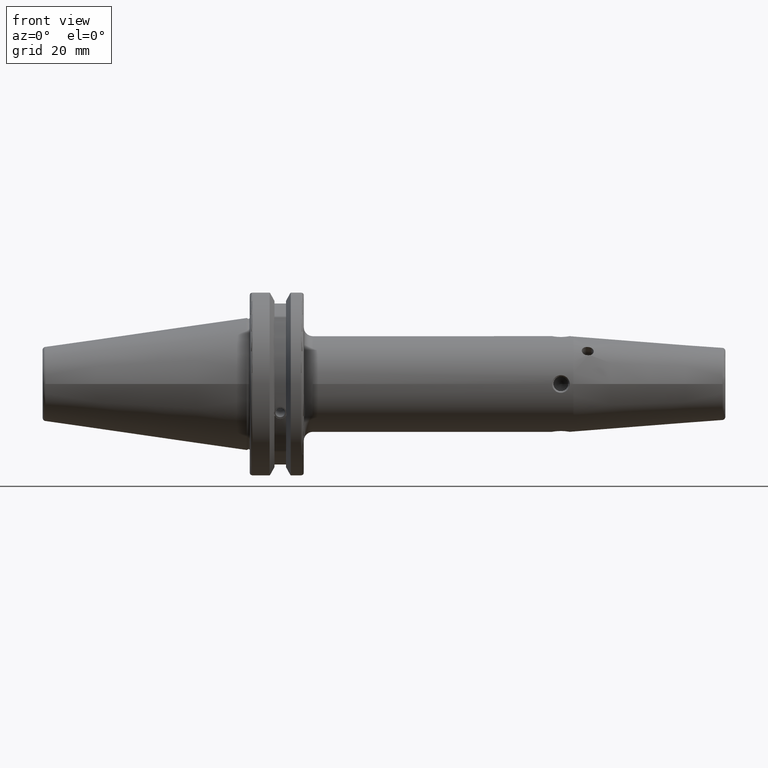
[diagram: clean part render]
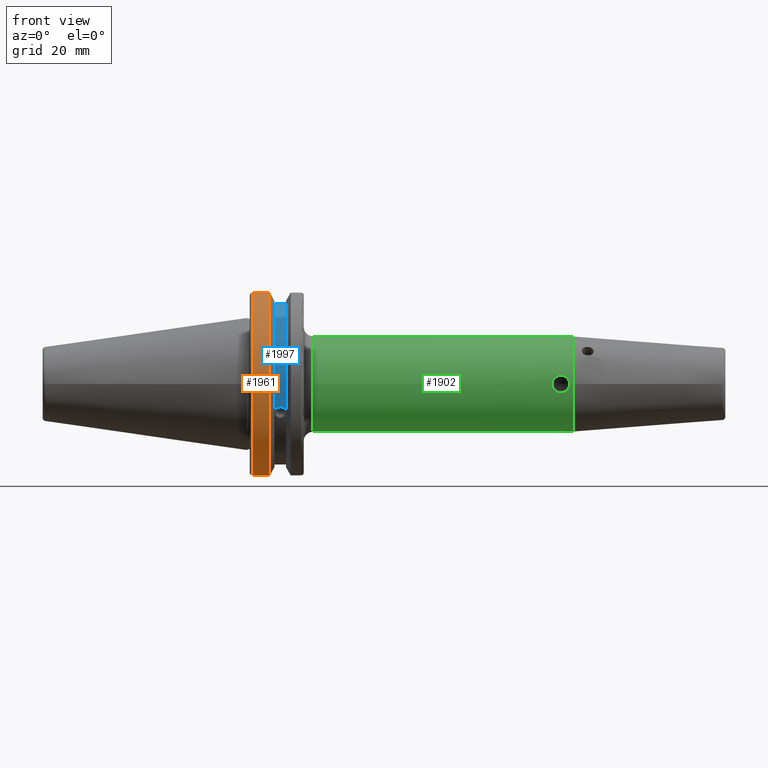
[diagram: same view with three faces highlighted in distinct colors, each labeled with its STEP entity id]
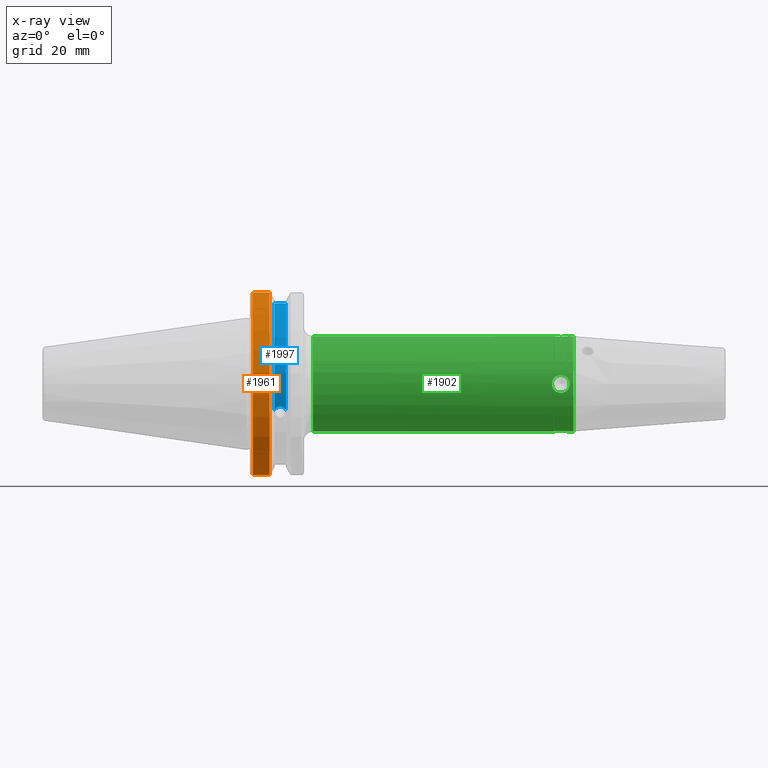
[diagram: x-ray of the same camera — body ghosted, the three highlighted faces saturated]
A machine part, front view with three faces highlighted in distinct colors.
The next image is the same camera in x-ray (body ghosted, the three faces saturated) — at least one of them is partly hidden behind the body in this view.
Their STEP definitions:

[orange] entity #1961 — the highlighted cylindrical surface (partial cylindrical patch) has radius 31.75 mm, axis along (1, 0, 0).
#219=FACE_OUTER_BOUND('',#347,.T.);
#347=EDGE_LOOP('',(#1659,#1660,#1661,#1662));
#478=LINE('',#4562,#596);
#479=LINE('',#4568,#597);
#596=VECTOR('',#2613,10.);
#597=VECTOR('',#2616,10.);
#686=CIRCLE('',#2166,31.75);
#688=CIRCLE('',#2170,31.75);
#929=VERTEX_POINT('',#4540);
#930=VERTEX_POINT('',#4549);
#931=VERTEX_POINT('',#4561);
#932=VERTEX_POINT('',#4567);
#1189=EDGE_CURVE('',#929,#930,#686,.T.);
#1192=EDGE_CURVE('',#930,#931,#478,.T.);
#1194=EDGE_CURVE('',#932,#929,#479,.T.);
#1195=EDGE_CURVE('',#931,#932,#688,.T.);
#1659=ORIENTED_EDGE('',*,*,#1189,.F.);
#1660=ORIENTED_EDGE('',*,*,#1194,.F.);
#1661=ORIENTED_EDGE('',*,*,#1195,.F.);
#1662=ORIENTED_EDGE('',*,*,#1192,.F.);
#1882=CYLINDRICAL_SURFACE('',#2169,31.75);
#1961=ADVANCED_FACE('',(#219),#1882,.T.);
#2166=AXIS2_PLACEMENT_3D('',#4550,#2607,#2608);
#2169=AXIS2_PLACEMENT_3D('',#4566,#2614,#2615);
#2170=AXIS2_PLACEMENT_3D('',#4569,#2617,#2618);
#2607=DIRECTION('center_axis',(-1.,0.,0.));
#2608=DIRECTION('ref_axis',(0.,-1.,1.60812264967664E-16));
#2613=DIRECTION('',(1.,0.,0.));
#2614=DIRECTION('center_axis',(1.,0.,0.));
#2615=DIRECTION('ref_axis',(0.,-1.,1.22464679914735E-16));
#2616=DIRECTION('',(-1.,0.,0.));
#2617=DIRECTION('center_axis',(1.,0.,0.));
#2618=DIRECTION('ref_axis',(0.,0.,-1.));
#4540=CARTESIAN_POINT('',(2.,-8.67204822802685,-30.5427254764662));
#4549=CARTESIAN_POINT('',(2.,-8.67204822802685,30.5427254764662));
#4550=CARTESIAN_POINT('Origin',(2.,0.,0.));
#4561=CARTESIAN_POINT('',(7.64983323092436,-8.67204822802685,30.5427254764662));
#4562=CARTESIAN_POINT('',(4.32491661546218,-8.67204822802685,30.5427254764662));
#4566=CARTESIAN_POINT('Origin',(4.32491661546218,0.,0.));
#4567=CARTESIAN_POINT('',(7.64983323092436,-8.67204822802685,-30.5427254764662));
#4568=CARTESIAN_POINT('',(4.32491661546218,-8.67204822802685,-30.5427254764662));
#4569=CARTESIAN_POINT('Origin',(7.64983323092436,0.,0.));

[blue] entity #1997 — the highlighted cylindrical surface (partial cylindrical patch) has radius 28.15 mm, axis along (1, 0, 0).
#255=FACE_OUTER_BOUND('',#388,.T.);
#388=EDGE_LOOP('',(#1839,#1840,#1841,#1842));
#471=LINE('',#4518,#589);
#589=VECTOR('',#2596,10.);
#712=CIRCLE('',#2229,28.15);
#713=CIRCLE('',#2231,28.15);
#744=B_SPLINE_CURVE_WITH_KNOTS('',3,(#4136,#4137,#4138,#4139,#4140,#4141,
#4142,#4143,#4144,#4145,#4146,#4147,#4148,#4149),.UNSPECIFIED.,.F.,.F.,
(4,2,2,2,2,2,4),(0.401639126382403,0.474814416953736,0.553950208498303,
0.63308600004287,0.712221791587437,0.791357583132004,0.864532873703336),
 .UNSPECIFIED.);
#851=VERTEX_POINT('',#4133);
#852=VERTEX_POINT('',#4135);
#923=VERTEX_POINT('',#4515);
#924=VERTEX_POINT('',#4517);
#1080=EDGE_CURVE('',#852,#851,#744,.T.);
#1179=EDGE_CURVE('',#924,#923,#471,.T.);
#1257=EDGE_CURVE('',#923,#852,#712,.T.);
#1258=EDGE_CURVE('',#924,#851,#713,.T.);
#1839=ORIENTED_EDGE('',*,*,#1080,.T.);
#1840=ORIENTED_EDGE('',*,*,#1258,.F.);
#1841=ORIENTED_EDGE('',*,*,#1179,.T.);
#1842=ORIENTED_EDGE('',*,*,#1257,.T.);
#1889=CYLINDRICAL_SURFACE('',#2230,28.15);
#1997=ADVANCED_FACE('',(#255),#1889,.T.);
#2229=AXIS2_PLACEMENT_3D('',#4726,#2765,#2766);
#2230=AXIS2_PLACEMENT_3D('',#4727,#2767,#2768);
#2231=AXIS2_PLACEMENT_3D('',#4728,#2769,#2770);
#2596=DIRECTION('',(-1.,0.,0.));
#2765=DIRECTION('center_axis',(1.,0.,0.));
#2766=DIRECTION('ref_axis',(0.,0.,-1.));
#2767=DIRECTION('center_axis',(1.,0.,0.));
#2768=DIRECTION('ref_axis',(0.,-0.887654187951484,0.46051063246378));
#2769=DIRECTION('center_axis',(1.,0.,0.));
#2770=DIRECTION('ref_axis',(0.,0.,-1.));
#4133=CARTESIAN_POINT('',(13.091,-26.734714844398,-8.81348524641212));
#4135=CARTESIAN_POINT('',(9.261,-26.734714844398,-8.81348524641212));
#4136=CARTESIAN_POINT('Ctrl Pts',(9.261,-26.734714844398,-8.81348524641212));
#4137=CARTESIAN_POINT('Ctrl Pts',(9.36723057097183,-26.8086519721597,-8.58920529678291));
#4138=CARTESIAN_POINT('Ctrl Pts',(9.51872013770509,-26.8729987454904,-8.38416529997369));
#4139=CARTESIAN_POINT('Ctrl Pts',(9.87747062657411,-26.9778908791383,-8.04056861831091));
#4140=CARTESIAN_POINT('Ctrl Pts',(10.1135450112988,-27.0233016799732,-7.88512567185902));
#4141=CARTESIAN_POINT('Ctrl Pts',(10.6309125426388,-27.0826966800569,-7.6786444840004));
#4142=CARTESIAN_POINT('Ctrl Pts',(10.9122140281848,-27.0968804077294,-7.62768458768513));
#4143=CARTESIAN_POINT('Ctrl Pts',(11.4397859718152,-27.0968804077294,-7.62768458768513));
#4144=CARTESIAN_POINT('Ctrl Pts',(11.7210874573612,-27.0826966800569,-7.6786444840004));
#4145=CARTESIAN_POINT('Ctrl Pts',(12.2384549887012,-27.0233016799732,-7.88512567185903));
#4146=CARTESIAN_POINT('Ctrl Pts',(12.4745293734259,-26.9778908791383,-8.04056861831091));
#4147=CARTESIAN_POINT('Ctrl Pts',(12.8332798622949,-26.8729987454904,-8.3841652999737));
#4148=CARTESIAN_POINT('Ctrl Pts',(12.9847694290282,-26.8086519721597,-8.58920529678291));
#4149=CARTESIAN_POINT('Ctrl Pts',(13.091,-26.734714844398,-8.81348524641212));
#4515=CARTESIAN_POINT('',(9.261,-8.19,26.932255754021));
#4517=CARTESIAN_POINT('',(13.091,-8.19,26.932255754021));
#4518=CARTESIAN_POINT('',(11.176,-8.19,26.932255754021));
#4726=CARTESIAN_POINT('Origin',(9.261,0.,0.));
#4727=CARTESIAN_POINT('Origin',(11.176,0.,0.));
#4728=CARTESIAN_POINT('Origin',(13.091,0.,0.));

[green] entity #1902 — the highlighted cylindrical surface (bore or boss wall) has radius 16 mm, axis along (1, 0, 0).
#41=FACE_BOUND('',#275,.T.);
#42=FACE_BOUND('',#276,.T.);
#43=FACE_BOUND('',#277,.T.);
#160=FACE_OUTER_BOUND('',#274,.T.);
#274=EDGE_LOOP('',(#1325,#1326,#1327,#1328,#1329,#1330,#1331,#1332,#1333));
#275=EDGE_LOOP('',(#1334));
#276=EDGE_LOOP('',(#1335));
#277=EDGE_LOOP('',(#1336));
#401=LINE('',#3075,#519);
#402=LINE('',#3092,#520);
#519=VECTOR('',#2308,16.);
#520=VECTOR('',#2309,16.);
#641=CIRCLE('',#2048,16.);
#642=CIRCLE('',#2050,16.);
#645=CIRCLE('',#2053,16.);
#730=B_SPLINE_CURVE_WITH_KNOTS('',3,(#3077,#3078,#3079,#3080,#3081,#3082,
#3083,#3084,#3085,#3086,#3087,#3088,#3089,#3090,#3091),.UNSPECIFIED.,.F.,
 .F.,(4,2,2,1,1,1,1,1,1,1,4),(-1.85532945633856,-1.76256387499152,-1.66979829364449,
-1.60022321616432,-1.53064813868415,-1.46107306120398,-1.4262855224639,
-1.39149798372381,-1.25234782876347,-1.1827727512833,-1.11319767380313),
 .UNSPECIFIED.);
#731=B_SPLINE_CURVE_WITH_KNOTS('',3,(#3093,#3094,#3095,#3096,#3097,#3098,
#3099,#3100,#3101,#3102,#3103,#3104,#3105,#3106,#3107,#3108,#3109,#3110,
#3111,#3112,#3113,#3114,#3115),.UNSPECIFIED.,.F.,.F.,(4,1,2,1,1,2,1,1,1,
2,1,1,1,1,1,1,1,4),(-2.59746123887398,-2.50469565752695,-2.41193007617991,
-2.37714231457235,-2.3423545529648,-2.31916271189309,-2.22639579334122,
-2.18001233406528,-2.13362887478934,-1.94809503768559,-1.9451961132685,
-1.9422971888514,-1.93649934001721,-1.92490364234883,-1.90171224701207,
-1.87852085167532,-1.86692515400694,-1.85532945633856),.UNSPECIFIED.);
#732=B_SPLINE_CURVE_WITH_KNOTS('',3,(#3117,#3118,#3119,#3120,#3121,#3122,
#3123,#3124,#3125,#3126,#3127,#3128,#3129,#3130,#3131,#3132,#3133,#3134,
#3135,#3136,#3137,#3138,#3139,#3140,#3141,#3142,#3143,#3144,#3145,#3146,
#3147,#3148,#3149,#3150,#3151),.UNSPECIFIED.,.T.,.F.,(4,1,2,1,1,2,1,1,1,
2,1,1,1,1,1,1,1,1,2,2,1,1,1,1,1,1,1,4),(-2.59746123887398,-2.50469565752695,
-2.41193007617991,-2.37714231457235,-2.3423545529648,-2.31916271189309,
-2.22639579334122,-2.18001233406528,-2.13362887478934,-1.94809503768559,
-1.9451961132685,-1.9422971888514,-1.93649934001721,-1.92490364234883,-1.90171224701207,
-1.87852085167532,-1.86692515400694,-1.85532945633856,-1.76256387499152,
-1.66979829364449,-1.60022321616432,-1.53064813868415,-1.46107306120398,
-1.4262855224639,-1.39149798372381,-1.25234782876347,-1.1827727512833,-1.11319767380313),
 .UNSPECIFIED.);
#733=B_SPLINE_CURVE_WITH_KNOTS('',3,(#3153,#3154,#3155,#3156,#3157,#3158,
#3159,#3160,#3161,#3162,#3163,#3164,#3165,#3166,#3167,#3168,#3169,#3170,
#3171,#3172,#3173,#3174,#3175,#3176,#3177,#3178,#3179,#3180,#3181,#3182,
#3183,#3184,#3185,#3186,#3187,#3188,#3189,#3190),.UNSPECIFIED.,.T.,.F.,
(4,1,1,1,2,1,1,1,1,2,1,1,1,1,1,1,1,1,1,1,1,1,1,1,1,1,1,1,2,1,1,1,4),(-2.59746123887398,
-2.50469476605705,-2.41192829324013,-2.3191618204232,-2.22639534760627,
-2.20320350653456,-2.18001166546286,-2.15681982439115,-2.1452239038553,
-2.13362798331945,-2.04086151050252,-1.94809503768559,-1.93649922858348,
-1.92490341948136,-1.91330761037924,-1.90171180127713,-1.8785201830729,
-1.85532856486866,-1.76256209205174,-1.71617885564327,-1.66979561923481,
-1.62341238282634,-1.60022076462211,-1.59442286007105,-1.58862495552,-1.58282705096894,
-1.57702914641788,-1.48426267360095,-1.39149620078402,-1.3219215690388,
-1.25234693729358,-1.21755962142097,-1.11319767380313),.UNSPECIFIED.);
#734=B_SPLINE_CURVE_WITH_KNOTS('',3,(#3192,#3193,#3194,#3195,#3196,#3197,
#3198,#3199,#3200,#3201,#3202,#3203,#3204,#3205,#3206,#3207,#3208,#3209,
#3210,#3211,#3212,#3213,#3214,#3215,#3216,#3217,#3218,#3219,#3220,#3221,
#3222,#3223,#3224),.UNSPECIFIED.,.T.,.F.,(4,2,2,2,1,1,1,2,1,1,1,1,1,1,1,
1,1,1,1,1,1,2,2,1,4),(-2.59746123887398,-2.50469565752695,-2.41193007617991,
-2.31916271189309,-2.13362887478934,-2.0872454155134,-2.04086195623747,
-1.94809503768559,-1.939398180859,-1.93070132403242,-1.92200446720583,-1.91330761037924,
-1.89591389672607,-1.88721703989948,-1.8785201830729,-1.8089453284602,-1.7393704738475,
-1.66979561923481,-1.60022076462211,-1.53064591000942,-1.46107105539672,
-1.39149620078402,-1.2987288364972,-1.20596325515017,-1.11319767380313),
 .UNSPECIFIED.);
#796=VERTEX_POINT('',#3062);
#797=VERTEX_POINT('',#3066);
#798=VERTEX_POINT('',#3067);
#800=VERTEX_POINT('',#3074);
#801=VERTEX_POINT('',#3076);
#802=VERTEX_POINT('',#3116);
#803=VERTEX_POINT('',#3152);
#804=VERTEX_POINT('',#3191);
#1002=EDGE_CURVE('',#796,#796,#641,.T.);
#1003=EDGE_CURVE('',#797,#798,#642,.T.);
#1006=EDGE_CURVE('',#798,#797,#645,.T.);
#1007=EDGE_CURVE('',#796,#800,#401,.T.);
#1008=EDGE_CURVE('',#801,#800,#730,.T.);
#1009=EDGE_CURVE('',#801,#797,#402,.T.);
#1010=EDGE_CURVE('',#800,#801,#731,.T.);
#1011=EDGE_CURVE('',#802,#802,#732,.T.);
#1012=EDGE_CURVE('',#803,#803,#733,.T.);
#1013=EDGE_CURVE('',#804,#804,#734,.T.);
#1325=ORIENTED_EDGE('',*,*,#1002,.F.);
#1326=ORIENTED_EDGE('',*,*,#1007,.T.);
#1327=ORIENTED_EDGE('',*,*,#1008,.F.);
#1328=ORIENTED_EDGE('',*,*,#1009,.T.);
#1329=ORIENTED_EDGE('',*,*,#1006,.F.);
#1330=ORIENTED_EDGE('',*,*,#1003,.F.);
#1331=ORIENTED_EDGE('',*,*,#1009,.F.);
#1332=ORIENTED_EDGE('',*,*,#1010,.F.);
#1333=ORIENTED_EDGE('',*,*,#1007,.F.);
#1334=ORIENTED_EDGE('',*,*,#1011,.F.);
#1335=ORIENTED_EDGE('',*,*,#1012,.F.);
#1336=ORIENTED_EDGE('',*,*,#1013,.F.);
#1857=CYLINDRICAL_SURFACE('',#2054,16.);
#1902=ADVANCED_FACE('',(#160,#41,#42,#43),#1857,.T.);
#2048=AXIS2_PLACEMENT_3D('',#3064,#2294,#2295);
#2050=AXIS2_PLACEMENT_3D('',#3068,#2298,#2299);
#2053=AXIS2_PLACEMENT_3D('',#3072,#2304,#2305);
#2054=AXIS2_PLACEMENT_3D('',#3073,#2306,#2307);
#2294=DIRECTION('center_axis',(1.,0.,0.));
#2295=DIRECTION('ref_axis',(0.,0.,-1.));
#2298=DIRECTION('center_axis',(-1.,0.,0.));
#2299=DIRECTION('ref_axis',(0.,-1.,-1.22464679914735E-16));
#2304=DIRECTION('center_axis',(-1.,0.,0.));
#2305=DIRECTION('ref_axis',(0.,-1.,-1.22464679914735E-16));
#2306=DIRECTION('center_axis',(1.,0.,0.));
#2307=DIRECTION('ref_axis',(0.,1.,0.));
#2308=DIRECTION('',(-1.,0.,0.));
#2309=DIRECTION('',(-1.,0.,0.));
#3062=CARTESIAN_POINT('',(109.175181055301,-16.,-1.95943487863577E-15));
#3064=CARTESIAN_POINT('Origin',(109.175181055301,0.,0.));
#3066=CARTESIAN_POINT('',(22.05,-16.,-1.95943487863577E-15));
#3067=CARTESIAN_POINT('',(22.05,-1.95943487863577E-15,-16.));
#3068=CARTESIAN_POINT('Origin',(22.05,0.,0.));
#3072=CARTESIAN_POINT('Origin',(22.05,0.,0.));
#3073=CARTESIAN_POINT('Origin',(64.1125905276507,0.,0.));
#3074=CARTESIAN_POINT('',(107.9585,-16.,2.25514051876985E-15));
#3075=CARTESIAN_POINT('',(64.1125905276507,-16.,-1.95943487863577E-15));
#3076=CARTESIAN_POINT('',(102.04235018877,-15.9999871361478,0.000496070235510389));
#3077=CARTESIAN_POINT('Ctrl Pts',(102.042799957268,-15.999980330888,0.000758502265459961));
#3078=CARTESIAN_POINT('Ctrl Pts',(102.042711394512,-16.0000065776853,-0.373608225671878));
#3079=CARTESIAN_POINT('Ctrl Pts',(102.116852730379,-15.9858765997115,-0.767521957166699));
#3080=CARTESIAN_POINT('Ctrl Pts',(102.418698987945,-15.9341743871899,-1.495953310185));
#3081=CARTESIAN_POINT('Ctrl Pts',(102.645460650418,-15.8976437802055,-1.82688891036243));
#3082=CARTESIAN_POINT('Ctrl Pts',(103.105445132791,-15.8374561605307,-2.28348237926337));
#3083=CARTESIAN_POINT('Ctrl Pts',(103.572346014844,-15.7828440111531,-2.63848960663023));
#3084=CARTESIAN_POINT('Ctrl Pts',(104.434887251696,-15.7279105051301,-2.93855711205512));
#3085=CARTESIAN_POINT('Ctrl Pts',(105.140884485426,-15.7218596407698,-2.96975233374037));
#3086=CARTESIAN_POINT('Ctrl Pts',(105.715594766525,-15.7396731244056,-2.87500921261855));
#3087=CARTESIAN_POINT('Ctrl Pts',(106.570919584161,-15.7903219801759,-2.59049108127814));
#3088=CARTESIAN_POINT('Ctrl Pts',(107.356220297959,-15.8948600642627,-1.94851830548053));
#3089=CARTESIAN_POINT('Ctrl Pts',(107.875619646376,-15.9842334676176,-0.867700468968993));
#3090=CARTESIAN_POINT('Ctrl Pts',(107.9585,-16.,-0.279083271269856));
#3091=CARTESIAN_POINT('Ctrl Pts',(107.9585,-16.,2.15105711021124E-15));
#3092=CARTESIAN_POINT('',(64.1125905276507,-16.,-1.95943487863577E-15));
#3093=CARTESIAN_POINT('Ctrl Pts',(107.9585,-16.,2.25514051876985E-15));
#3094=CARTESIAN_POINT('Ctrl Pts',(107.9585,-16.,0.372106260477537));
#3095=CARTESIAN_POINT('Ctrl Pts',(107.807444673771,-15.9705987228973,1.16459186007037));
#3096=CARTESIAN_POINT('Ctrl Pts',(107.354153976832,-15.8972281777485,1.82751908498949));
#3097=CARTESIAN_POINT('Ctrl Pts',(106.993111733667,-15.8500027184815,2.18645546369129));
#3098=CARTESIAN_POINT('Ctrl Pts',(106.777713624611,-15.8235115343886,2.37346246551391));
#3099=CARTESIAN_POINT('Ctrl Pts',(106.446865271524,-15.7901253586439,2.58379179336147));
#3100=CARTESIAN_POINT('Ctrl Pts',(106.22402437098,-15.7722605463167,2.68909637009342));
#3101=CARTESIAN_POINT('Ctrl Pts',(105.766659008387,-15.7396818156965,2.87742152129651));
#3102=CARTESIAN_POINT('Ctrl Pts',(105.185841767329,-15.7188021939167,2.98528540747401));
#3103=CARTESIAN_POINT('Ctrl Pts',(104.433400249982,-15.7322846033412,2.91532618857873));
#3104=CARTESIAN_POINT('Ctrl Pts',(103.274025176423,-15.7955980455064,2.56550419386436));
#3105=CARTESIAN_POINT('Ctrl Pts',(102.573111752963,-15.9081666017278,1.86044596619134));
#3106=CARTESIAN_POINT('Ctrl Pts',(102.263680674346,-15.9606393143642,1.12160011313279));
#3107=CARTESIAN_POINT('Ctrl Pts',(102.254408191993,-15.9622317832645,1.09880412954386));
#3108=CARTESIAN_POINT('Ctrl Pts',(102.23638423974,-15.9653351796705,1.05298549007084));
#3109=CARTESIAN_POINT('Ctrl Pts',(102.206381808987,-15.9705420235819,0.972207019070803));
#3110=CARTESIAN_POINT('Ctrl Pts',(102.152461869818,-15.9800271379176,0.808652358017222));
#3111=CARTESIAN_POINT('Ctrl Pts',(102.093396916062,-15.9906628066605,0.570223740955738));
#3112=CARTESIAN_POINT('Ctrl Pts',(102.058587390684,-15.9970626273078,0.330996878401422));
#3113=CARTESIAN_POINT('Ctrl Pts',(102.045152852634,-15.9995281063149,0.140535181380791));
#3114=CARTESIAN_POINT('Ctrl Pts',(102.042811027613,-15.9999770500383,0.0475543432576275));
#3115=CARTESIAN_POINT('Ctrl Pts',(102.042799957268,-15.999980330888,0.000758502265459961));
#3116=CARTESIAN_POINT('',(107.9585,-1.66533453693773E-15,-16.));
#3117=CARTESIAN_POINT('Ctrl Pts',(107.9585,-1.66533453693773E-15,-16.));
#3118=CARTESIAN_POINT('Ctrl Pts',(107.9585,-0.372106260477534,-16.));
#3119=CARTESIAN_POINT('Ctrl Pts',(107.807444673771,-1.16459186007038,-15.9705987228973));
#3120=CARTESIAN_POINT('Ctrl Pts',(107.354153976832,-1.82751908498949,-15.8972281777485));
#3121=CARTESIAN_POINT('Ctrl Pts',(106.993111733667,-2.1864554636913,-15.8500027184815));
#3122=CARTESIAN_POINT('Ctrl Pts',(106.777713624611,-2.37346246551391,-15.8235115343886));
#3123=CARTESIAN_POINT('Ctrl Pts',(106.446865271524,-2.58379179336148,-15.7901253586439));
#3124=CARTESIAN_POINT('Ctrl Pts',(106.22402437098,-2.68909637009343,-15.7722605463167));
#3125=CARTESIAN_POINT('Ctrl Pts',(105.766659008387,-2.87742152129651,-15.7396818156965));
#3126=CARTESIAN_POINT('Ctrl Pts',(105.185841767329,-2.98528540747401,-15.7188021939166));
#3127=CARTESIAN_POINT('Ctrl Pts',(104.433400249982,-2.91532618857872,-15.7322846033411));
#3128=CARTESIAN_POINT('Ctrl Pts',(103.274025176421,-2.56550419386435,-15.7955980455062));
#3129=CARTESIAN_POINT('Ctrl Pts',(102.573111752959,-1.86044596619129,-15.9081666017273));
#3130=CARTESIAN_POINT('Ctrl Pts',(102.263680674341,-1.12160011313273,-15.9606393143634));
#3131=CARTESIAN_POINT('Ctrl Pts',(102.254408191988,-1.0988041295438,-15.9622317832637));
#3132=CARTESIAN_POINT('Ctrl Pts',(102.236384239735,-1.05298549007079,-15.9653351796697));
#3133=CARTESIAN_POINT('Ctrl Pts',(102.206381808982,-0.972207019070748,-15.9705420235811));
#3134=CARTESIAN_POINT('Ctrl Pts',(102.152461869813,-0.808652358017169,-15.9800271379169));
#3135=CARTESIAN_POINT('Ctrl Pts',(102.093396916058,-0.570223740955688,-15.9906628066598));
#3136=CARTESIAN_POINT('Ctrl Pts',(102.05858739068,-0.330996878401374,-15.9970626273071));
#3137=CARTESIAN_POINT('Ctrl Pts',(102.04515285263,-0.140535181380743,-15.9995281063142));
#3138=CARTESIAN_POINT('Ctrl Pts',(102.033443727524,0.324369009235072,-16.0017728249314));
#3139=CARTESIAN_POINT('Ctrl Pts',(102.116852730375,0.767521957166735,-15.985876599711));
#3140=CARTESIAN_POINT('Ctrl Pts',(102.418698987942,1.49595331018503,-15.9341743871895));
#3141=CARTESIAN_POINT('Ctrl Pts',(102.645460650415,1.82688891036245,-15.8976437802052));
#3142=CARTESIAN_POINT('Ctrl Pts',(103.105445132789,2.28348237926339,-15.8374561605305));
#3143=CARTESIAN_POINT('Ctrl Pts',(103.572346014843,2.63848960663025,-15.7828440111528));
#3144=CARTESIAN_POINT('Ctrl Pts',(104.434887251695,2.93855711205513,-15.72791050513));
#3145=CARTESIAN_POINT('Ctrl Pts',(105.140884485425,2.96975233374038,-15.7218596407697));
#3146=CARTESIAN_POINT('Ctrl Pts',(105.715594766525,2.87500921261856,-15.7396731244055));
#3147=CARTESIAN_POINT('Ctrl Pts',(106.570919584161,2.59049108127815,-15.7903219801758));
#3148=CARTESIAN_POINT('Ctrl Pts',(107.356220297958,1.94851830548053,-15.8948600642626));
#3149=CARTESIAN_POINT('Ctrl Pts',(107.875619646375,0.867700468968995,-15.9842334676176));
#3150=CARTESIAN_POINT('Ctrl Pts',(107.9585,0.279083271269855,-16.));
#3151=CARTESIAN_POINT('Ctrl Pts',(107.9585,-2.56739074444567E-15,-16.));
#3152=CARTESIAN_POINT('',(107.9585,9.79717439317884E-16,16.));
#3153=CARTESIAN_POINT('Ctrl Pts',(107.9585,9.79717439317884E-16,16.));
#3154=CARTESIAN_POINT('Ctrl Pts',(107.9585,0.372109836389236,16.));
#3155=CARTESIAN_POINT('Ctrl Pts',(107.800645746814,1.1728689765481,15.9698121375029));
#3156=CARTESIAN_POINT('Ctrl Pts',(107.144907474219,2.1423865708982,15.8629909398013));
#3157=CARTESIAN_POINT('Ctrl Pts',(106.174190017557,2.79556502525432,15.7558874500164));
#3158=CARTESIAN_POINT('Ctrl Pts',(105.370100626717,2.95372712913681,15.7249476578938));
#3159=CARTESIAN_POINT('Ctrl Pts',(104.905492098658,2.95163462367097,15.7253808601748));
#3160=CARTESIAN_POINT('Ctrl Pts',(104.715813377736,2.94311522286335,15.726976506245));
#3161=CARTESIAN_POINT('Ctrl Pts',(104.427726950415,2.90133799234538,15.7347627377096));
#3162=CARTESIAN_POINT('Ctrl Pts',(104.189090770225,2.84254097928004,15.7455054977679));
#3163=CARTESIAN_POINT('Ctrl Pts',(104.001614874048,2.78101251499069,15.7564622999853));
#3164=CARTESIAN_POINT('Ctrl Pts',(103.909699280426,2.74584259428565,15.7626210432031));
#3165=CARTESIAN_POINT('Ctrl Pts',(103.49731248415,2.57441344846752,15.7921744697702));
#3166=CARTESIAN_POINT('Ctrl Pts',(102.85426185754,2.14340234185149,15.8630138526796));
#3167=CARTESIAN_POINT('Ctrl Pts',(102.391768700916,1.45699765144355,15.9383351048172));
#3168=CARTESIAN_POINT('Ctrl Pts',(102.213048667334,0.995529846352716,15.9691645634588));
#3169=CARTESIAN_POINT('Ctrl Pts',(102.167043409254,0.85558292514437,15.9772698405748));
#3170=CARTESIAN_POINT('Ctrl Pts',(102.12794502351,0.713314272387505,15.9842446782482));
#3171=CARTESIAN_POINT('Ctrl Pts',(102.08556845793,0.522903037458001,15.9919164736542));
#3172=CARTESIAN_POINT('Ctrl Pts',(102.050974382243,0.281604916316997,15.998239861912));
#3173=CARTESIAN_POINT('Ctrl Pts',(102.023848231593,-0.277761280056962,16.0034272033921));
#3174=CARTESIAN_POINT('Ctrl Pts',(102.152906240003,-0.963101798942884,15.9785107198141));
#3175=CARTESIAN_POINT('Ctrl Pts',(102.532787613748,-1.66416950441121,15.915499782086));
#3176=CARTESIAN_POINT('Ctrl Pts',(102.895040734374,-2.10049903026745,15.863111530251));
#3177=CARTESIAN_POINT('Ctrl Pts',(103.259565096765,-2.40133437238718,15.819284250394));
#3178=CARTESIAN_POINT('Ctrl Pts',(103.534252768931,-2.56697132415111,15.7927177599149));
#3179=CARTESIAN_POINT('Ctrl Pts',(103.664890803528,-2.6346947816418,15.7814795775845));
#3180=CARTESIAN_POINT('Ctrl Pts',(103.731336753542,-2.66709942701048,15.7760336139596));
#3181=CARTESIAN_POINT('Ctrl Pts',(103.798386199931,-2.69778514824139,15.7708169404986));
#3182=CARTESIAN_POINT('Ctrl Pts',(104.208096144586,-2.87239121579473,15.7407260184693));
#3183=CARTESIAN_POINT('Ctrl Pts',(105.000621335574,-3.02586153062317,15.7106494952217));
#3184=CARTESIAN_POINT('Ctrl Pts',(105.765431456358,-2.87568432114997,15.7399097690425));
#3185=CARTESIAN_POINT('Ctrl Pts',(106.409314865491,-2.61227757417484,15.7854572993831));
#3186=CARTESIAN_POINT('Ctrl Pts',(106.916447886033,-2.30185860449086,15.8364145443955));
#3187=CARTESIAN_POINT('Ctrl Pts',(107.385570502241,-1.78582580448252,15.9027579910252));
#3188=CARTESIAN_POINT('Ctrl Pts',(107.830990726411,-1.01454657151677,15.9750283983683));
#3189=CARTESIAN_POINT('Ctrl Pts',(107.9585,-0.418622224970972,16.));
#3190=CARTESIAN_POINT('Ctrl Pts',(107.9585,4.09394740330526E-15,16.));
#3191=CARTESIAN_POINT('',(107.9585,16.,7.63278329429795E-16));
#3192=CARTESIAN_POINT('Ctrl Pts',(107.9585,16.,7.63278329429795E-16));
#3193=CARTESIAN_POINT('Ctrl Pts',(107.9585,16.,-0.372106260477516));
#3194=CARTESIAN_POINT('Ctrl Pts',(107.883619979141,15.9857080691495,-0.768451888313903));
#3195=CARTESIAN_POINT('Ctrl Pts',(107.581605337811,15.9339093811683,-1.49625684999201));
#3196=CARTESIAN_POINT('Ctrl Pts',(107.354223072882,15.8974245573497,-1.82721858575838));
#3197=CARTESIAN_POINT('Ctrl Pts',(106.829795211607,15.8284167794896,-2.34967877109513));
#3198=CARTESIAN_POINT('Ctrl Pts',(106.498343881411,15.7919416744076,-2.57681812035889));
#3199=CARTESIAN_POINT('Ctrl Pts',(105.401875611601,15.7128443321598,-3.02546722024364));
#3200=CARTESIAN_POINT('Ctrl Pts',(104.39528499166,15.7144077902452,-3.02914177807853));
#3201=CARTESIAN_POINT('Ctrl Pts',(103.330589319493,15.8110696630152,-2.46053338029905));
#3202=CARTESIAN_POINT('Ctrl Pts',(102.751869946244,15.8804005974966,-1.98271103075102));
#3203=CARTESIAN_POINT('Ctrl Pts',(102.419849297489,15.9339688075329,-1.49861469008815));
#3204=CARTESIAN_POINT('Ctrl Pts',(102.253735606059,15.9623292656572,-1.09887197644294));
#3205=CARTESIAN_POINT('Ctrl Pts',(102.226784356805,15.9669771355478,-1.03025533181226));
#3206=CARTESIAN_POINT('Ctrl Pts',(102.190119657054,15.9733819279901,-0.925637942388162));
#3207=CARTESIAN_POINT('Ctrl Pts',(102.157506297384,15.9791510954295,-0.819966387610127));
#3208=CARTESIAN_POINT('Ctrl Pts',(102.119359139551,15.9859701003876,-0.677760388942392));
#3209=CARTESIAN_POINT('Ctrl Pts',(102.089458315135,15.9913956576696,-0.534442957538662));
#3210=CARTESIAN_POINT('Ctrl Pts',(102.067603113191,15.9953909182494,-0.390752145804611));
#3211=CARTESIAN_POINT('Ctrl Pts',(102.027196958533,16.002836411061,-0.0337994379098253));
#3212=CARTESIAN_POINT('Ctrl Pts',(102.051755893043,15.998169597327,0.567563398513488));
#3213=CARTESIAN_POINT('Ctrl Pts',(102.358479930174,15.9428576453192,1.42806621762979));
#3214=CARTESIAN_POINT('Ctrl Pts',(102.882438951545,15.8629221643516,2.11737516358717));
#3215=CARTESIAN_POINT('Ctrl Pts',(103.567262536789,15.783521230842,2.63394750881867));
#3216=CARTESIAN_POINT('Ctrl Pts',(104.432350571738,15.7273438598592,2.94156264735616));
#3217=CARTESIAN_POINT('Ctrl Pts',(105.280914407035,15.7203074355568,2.97751986900189));
#3218=CARTESIAN_POINT('Ctrl Pts',(105.859733620532,15.7460822737714,2.84066055148957));
#3219=CARTESIAN_POINT('Ctrl Pts',(106.498801810344,15.7916885062626,2.5771497639208));
#3220=CARTESIAN_POINT('Ctrl Pts',(106.830566182415,15.8284203236,2.35077937766219));
#3221=CARTESIAN_POINT('Ctrl Pts',(107.354467709196,15.8972103946654,1.82764292420855));
#3222=CARTESIAN_POINT('Ctrl Pts',(107.807969403834,15.9706369757795,1.16477222160093));
#3223=CARTESIAN_POINT('Ctrl Pts',(107.9585,16.,0.372106260477535));
#3224=CARTESIAN_POINT('Ctrl Pts',(107.9585,16.,4.16333634234434E-16));